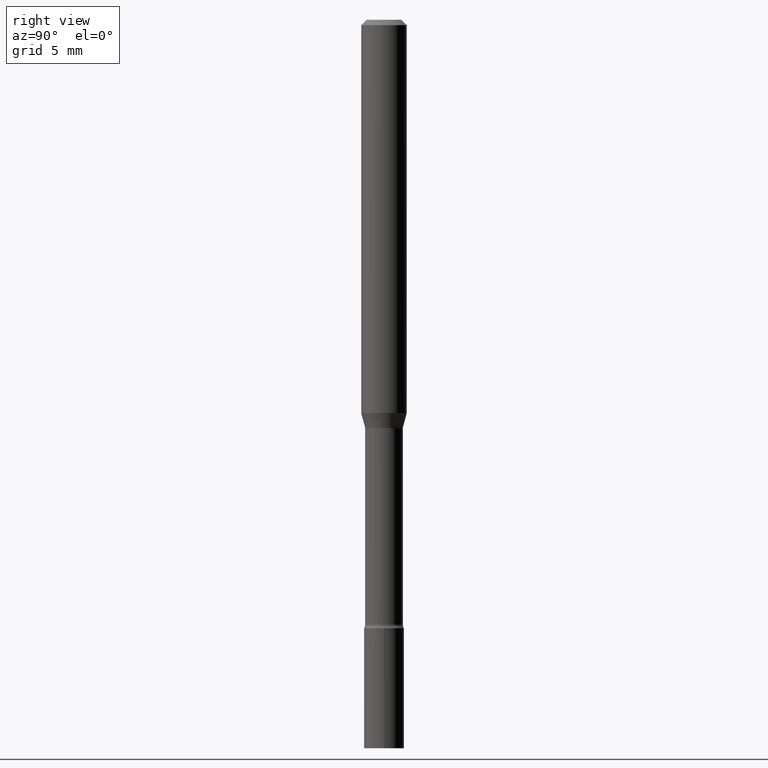
[diagram: clean part render]
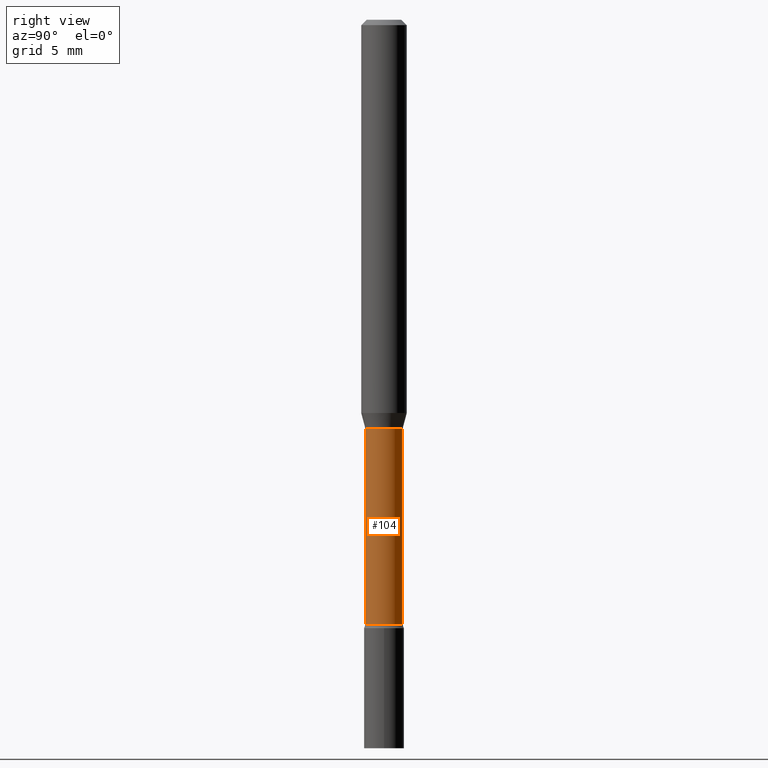
[diagram: same view with one face highlighted and labeled with its STEP entity id]
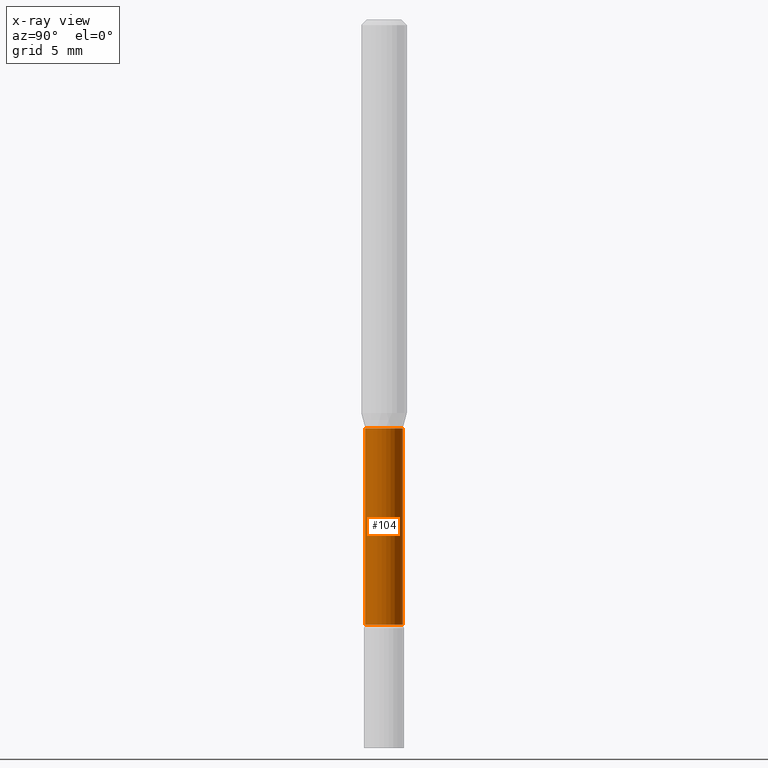
[diagram: x-ray of the same camera — body ghosted, the highlighted face saturated]
A machine part, right view. The second image highlights one B-rep face of the part: STEP entity #104.
The next image is the same camera in x-ray: the body ghosted, the highlighted face saturated — about 0% of this face is hidden behind the body in this view.
In plain terms, the highlighted cylindrical surface (edge-blend (fillet) strip) has radius 1.3132 mm, axis along (-0, 0, 1).
Its self-contained STEP definition (entity closure, byte-faithful):
#70 = CARTESIAN_POINT ( 'NONE',  ( -3.610191704363799542E-16, -0.05170000000000000984, 1.805128164933191265E-16 ) ) ;
#84 = ORIENTED_EDGE ( 'NONE', *, *, #317, .T. ) ;
#86 = DIRECTION ( 'NONE',  ( -6.982962677686264344E-15, -1.000000000000000000, 3.491543839329189399E-15 ) ) ;
#104 = ADVANCED_FACE ( 'NONE', ( #108 ), #197, .T. ) ;
#105 = CIRCLE ( 'NONE', #344, 0.05170000000000000984 ) ;
#108 = FACE_OUTER_BOUND ( 'NONE', #217, .T. ) ;
#110 = EDGE_CURVE ( 'NONE', #111, #253, #314, .T. ) ;
#111 = VERTEX_POINT ( 'NONE', #520 ) ;
#115 = DIRECTION ( 'NONE',  ( -6.982962677686264344E-15, -1.000000000000000000, 2.642019336232362457E-15 ) ) ;
#125 = VERTEX_POINT ( 'NONE', #291 ) ;
#165 = DIRECTION ( 'NONE',  ( -2.445425162328998423E-29, 3.491543839329189399E-15, 1.000000000000000000 ) ) ;
#170 = ORIENTED_EDGE ( 'NONE', *, *, #407, .F. ) ;
#190 = DIRECTION ( 'NONE',  ( -2.445425162328998423E-29, 3.491543839329189399E-15, 1.000000000000000000 ) ) ;
#197 = CYLINDRICAL_SURFACE ( 'NONE', #247, 0.05170000000000000984 ) ;
#203 = VECTOR ( 'NONE', #446, 39.37007874015748143 ) ;
#217 = EDGE_LOOP ( 'NONE', ( #448, #84, #286, #170 ) ) ;
#247 = AXIS2_PLACEMENT_3D ( 'NONE', #355, #374, #86 ) ;
#253 = VERTEX_POINT ( 'NONE', #290 ) ;
#272 = LINE ( 'NONE', #70, #467 ) ;
#286 = ORIENTED_EDGE ( 'NONE', *, *, #110, .F. ) ;
#290 = CARTESIAN_POINT ( 'NONE',  ( 3.673505943880124923E-16, 0.05169999999999608936, -1.121974787463811074 ) ) ;
#291 = CARTESIAN_POINT ( 'NONE',  ( -3.610191704363393772E-16, -0.05170000000000580381, -1.660613307291702423 ) ) ;
#305 = AXIS2_PLACEMENT_3D ( 'NONE', #510, #165, #115 ) ;
#314 = CIRCLE ( 'NONE', #305, 0.05170000000000000984 ) ;
#317 = EDGE_CURVE ( 'NONE', #473, #253, #327, .T. ) ;
#318 = DIRECTION ( 'NONE',  ( -2.445425162328998703E-29, 3.491543839329189794E-15, 1.000000000000000000 ) ) ;
#327 = LINE ( 'NONE', #474, #203 ) ;
#342 = DIRECTION ( 'NONE',  ( -6.982962677686264344E-15, -1.000000000000000000, 5.284038672464724914E-15 ) ) ;
#344 = AXIS2_PLACEMENT_3D ( 'NONE', #386, #190, #342 ) ;
#355 = CARTESIAN_POINT ( 'NONE',  ( 0.000000000000000000, 0.000000000000000000, 0.000000000000000000 ) ) ;
#374 = DIRECTION ( 'NONE',  ( -2.445425162328998423E-29, 3.491543839329189399E-15, 1.000000000000000000 ) ) ;
#386 = CARTESIAN_POINT ( 'NONE',  ( 4.060905566549507084E-29, -5.798104162582414395E-15, -1.660613307291702645 ) ) ;
#392 = EDGE_CURVE ( 'NONE', #125, #473, #105, .T. ) ;
#407 = EDGE_CURVE ( 'NONE', #125, #111, #272, .T. ) ;
#446 = DIRECTION ( 'NONE',  ( -2.445425162328998703E-29, 3.491543839329189794E-15, 1.000000000000000000 ) ) ;
#448 = ORIENTED_EDGE ( 'NONE', *, *, #392, .T. ) ;
#467 = VECTOR ( 'NONE', #318, 39.37007874015748143 ) ;
#473 = VERTEX_POINT ( 'NONE', #487 ) ;
#474 = CARTESIAN_POINT ( 'NONE',  ( 3.673505943879717674E-16, 0.05170000000000000984, -1.805128164933191265E-16 ) ) ;
#487 = CARTESIAN_POINT ( 'NONE',  ( 3.790745495280543333E-16, 0.05169999999999420892, -1.660613307291702867 ) ) ;
#510 = CARTESIAN_POINT ( 'NONE',  ( 2.743705376762733121E-29, -3.917424157051945251E-15, -1.121974787463810852 ) ) ;
#520 = CARTESIAN_POINT ( 'NONE',  ( -3.610191704363525413E-16, -0.05170000000000392337, -1.121974787463810630 ) ) ;